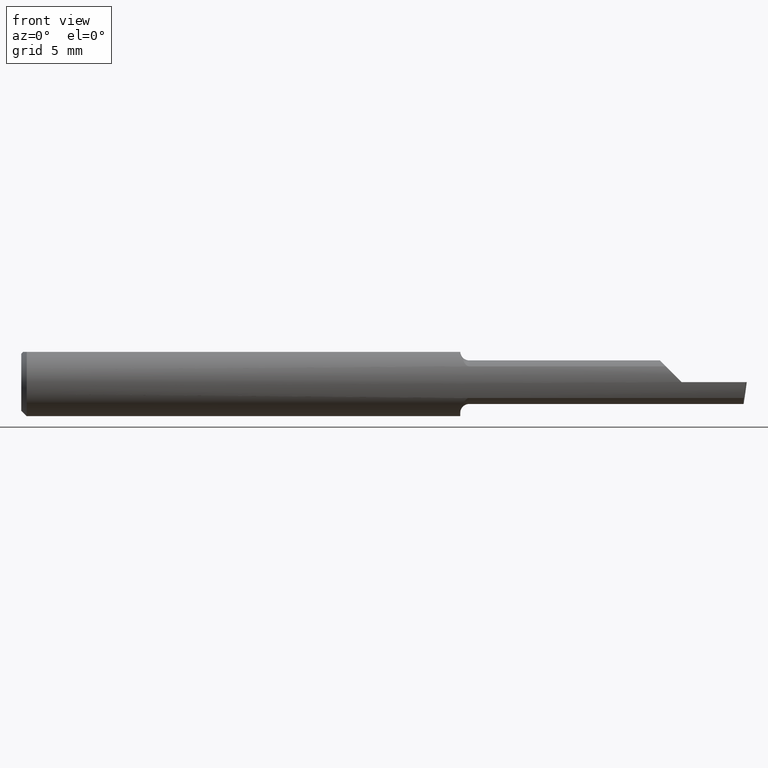
[diagram: clean part render]
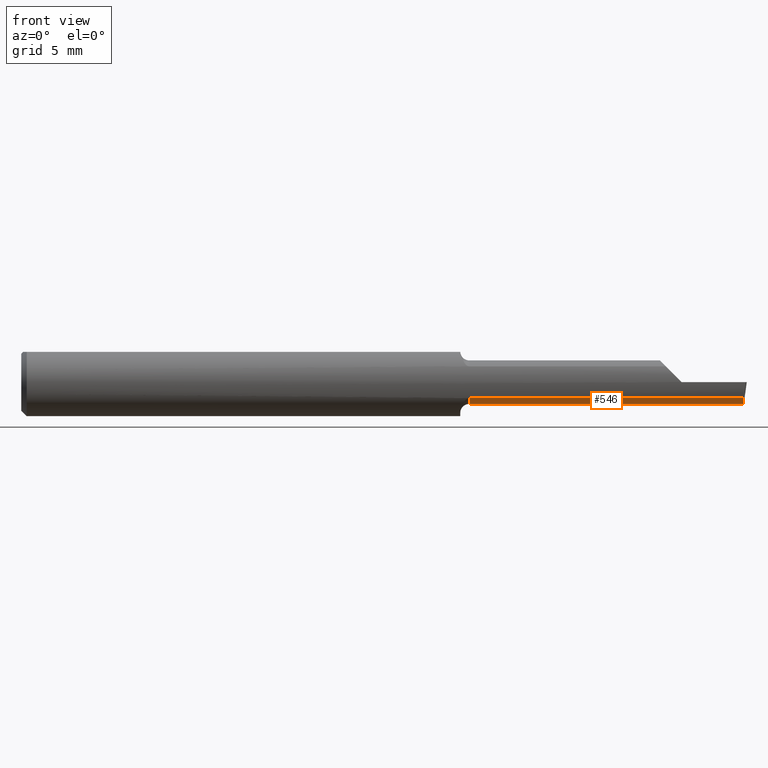
[diagram: same view with one face highlighted and labeled with its STEP entity id]
A machine part, front view. The second image highlights one B-rep face of the part: STEP entity #546.
In plain terms, the highlighted cylindrical surface (edge-blend (fillet) strip) has radius 1.524 mm, axis along (-1, -0, -0).
Its self-contained STEP definition (entity closure, byte-faithful):
#90 = LINE ( 'NONE', #361, #405 ) ;
#97 = FACE_OUTER_BOUND ( 'NONE', #321, .T. ) ;
#162 = ORIENTED_EDGE ( 'NONE', *, *, #1148, .F. ) ;
#189 = CARTESIAN_POINT ( 'NONE',  ( 1.990364025044636609, -0.04160000000000000503, -0.05999999999999999778 ) ) ;
#237 = VERTEX_POINT ( 'NONE', #1130 ) ;
#256 = VECTOR ( 'NONE', #1100, 39.37007874015748143 ) ;
#265 = DIRECTION ( 'NONE',  ( 0.000000000000000000, 0.000000000000000000, 1.000000000000000000 ) ) ;
#266 = VERTEX_POINT ( 'NONE', #293 ) ;
#293 = CARTESIAN_POINT ( 'NONE',  ( 1.845000000000000195, -0.04160000000000000503, -0.05999999999999999778 ) ) ;
#296 = CARTESIAN_POINT ( 'NONE',  ( 1.991291236644940232, -0.08283076923076923559, -0.04358926093247112582 ) ) ;
#300 = EDGE_CURVE ( 'NONE', #266, #734, #370, .T. ) ;
#321 = EDGE_LOOP ( 'NONE', ( #766, #585, #162, #505, #531 ) ) ;
#361 = CARTESIAN_POINT ( 'NONE',  ( 1.527500000000000080, -0.08283076923076923559, -0.04358926093247113970 ) ) ;
#370 = LINE ( 'NONE', #727, #256 ) ;
#405 = VECTOR ( 'NONE', #731, 39.37007874015748143 ) ;
#455 = VECTOR ( 'NONE', #591, 39.37007874015748143 ) ;
#500 = CARTESIAN_POINT ( 'NONE',  ( 1.234999999999999876, -0.08283076923076923559, -0.04358926093247113970 ) ) ;
#504 =( BOUNDED_CURVE ( )  B_SPLINE_CURVE ( 3, ( #296, #561, #1019, #189 ),
 .UNSPECIFIED., .F., .T. ) 
 B_SPLINE_CURVE_WITH_KNOTS ( ( 4, 4 ),
 ( 5.737236584267658479, 6.494836076230707356 ),
 .UNSPECIFIED. ) 
 CURVE ( )  GEOMETRIC_REPRESENTATION_ITEM ( )  RATIONAL_B_SPLINE_CURVE ( ( 1.000000000000000000, 0.9527394435546667761, 0.9527394435546667761, 1.000000000000000000 ) ) 
 REPRESENTATION_ITEM ( '' )  );
#505 = ORIENTED_EDGE ( 'NONE', *, *, #625, .T. ) ;
#528 = AXIS2_PLACEMENT_3D ( 'NONE', #905, #642, #631 ) ;
#531 = ORIENTED_EDGE ( 'NONE', *, *, #541, .T. ) ;
#535 = CARTESIAN_POINT ( 'NONE',  ( 1.209999999999999964, -0.04160000000000000503, 0.000000000000000000 ) ) ;
#541 = EDGE_CURVE ( 'NONE', #758, #734, #623, .T. ) ;
#546 = ADVANCED_FACE ( 'NONE', ( #97 ), #809, .T. ) ;
#561 = CARTESIAN_POINT ( 'NONE',  ( 1.990278811434611050, -0.07155132897918983770, -0.05425840255397269829 ) ) ;
#585 = ORIENTED_EDGE ( 'NONE', *, *, #835, .F. ) ;
#588 = LINE ( 'NONE', #1042, #455 ) ;
#591 = DIRECTION ( 'NONE',  ( -1.000000000000000000, -0.000000000000000000, -0.000000000000000000 ) ) ;
#611 = CARTESIAN_POINT ( 'NONE',  ( 1.991291236644940232, -0.08283076923076923559, -0.04358926093247112582 ) ) ;
#623 = CIRCLE ( 'NONE', #528, 0.06000000000000001166 ) ;
#625 = EDGE_CURVE ( 'NONE', #979, #758, #90, .T. ) ;
#631 = DIRECTION ( 'NONE',  ( 0.000000000000000000, 0.000000000000000000, -1.000000000000000000 ) ) ;
#642 = DIRECTION ( 'NONE',  ( 1.000000000000000000, 0.000000000000000000, 0.000000000000000000 ) ) ;
#727 = CARTESIAN_POINT ( 'NONE',  ( 1.209999999999999964, -0.04159999999999999809, -0.06000000000000001166 ) ) ;
#731 = DIRECTION ( 'NONE',  ( -1.000000000000000000, -0.000000000000000000, -0.000000000000000000 ) ) ;
#734 = VERTEX_POINT ( 'NONE', #745 ) ;
#745 = CARTESIAN_POINT ( 'NONE',  ( 1.234999999999999876, -0.04159999999999999809, -0.06000000000000001166 ) ) ;
#758 = VERTEX_POINT ( 'NONE', #500 ) ;
#766 = ORIENTED_EDGE ( 'NONE', *, *, #300, .F. ) ;
#809 = CYLINDRICAL_SURFACE ( 'NONE', #829, 0.06000000000000001166 ) ;
#829 = AXIS2_PLACEMENT_3D ( 'NONE', #535, #989, #265 ) ;
#835 = EDGE_CURVE ( 'NONE', #237, #266, #588, .T. ) ;
#905 = CARTESIAN_POINT ( 'NONE',  ( 1.234999999999999876, -0.04160000000000000503, 0.000000000000000000 ) ) ;
#979 = VERTEX_POINT ( 'NONE', #611 ) ;
#989 = DIRECTION ( 'NONE',  ( -1.000000000000000000, -0.000000000000000000, -0.000000000000000000 ) ) ;
#1019 = CARTESIAN_POINT ( 'NONE',  ( 1.989954409484502529, -0.05712598967308065573, -0.06000000000000002554 ) ) ;
#1042 = CARTESIAN_POINT ( 'NONE',  ( 2.000000000000001776, -0.04160000000000000503, -0.05999999999999999778 ) ) ;
#1100 = DIRECTION ( 'NONE',  ( -1.000000000000000000, -0.000000000000000000, -0.000000000000000000 ) ) ;
#1130 = CARTESIAN_POINT ( 'NONE',  ( 1.990364025044636609, -0.04160000000000000503, -0.05999999999999999778 ) ) ;
#1148 = EDGE_CURVE ( 'NONE', #979, #237, #504, .T. ) ;